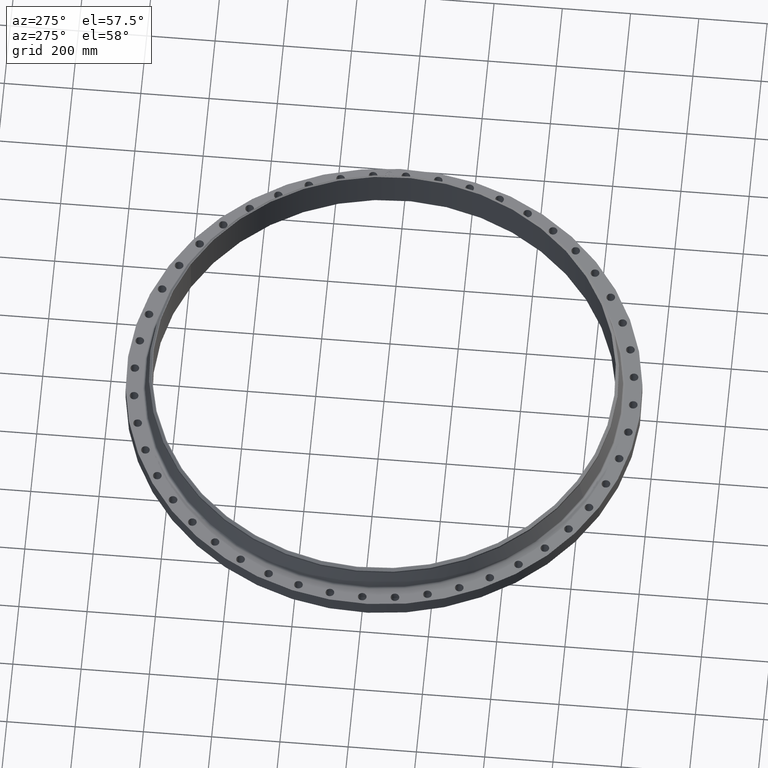
[diagram: clean part render]
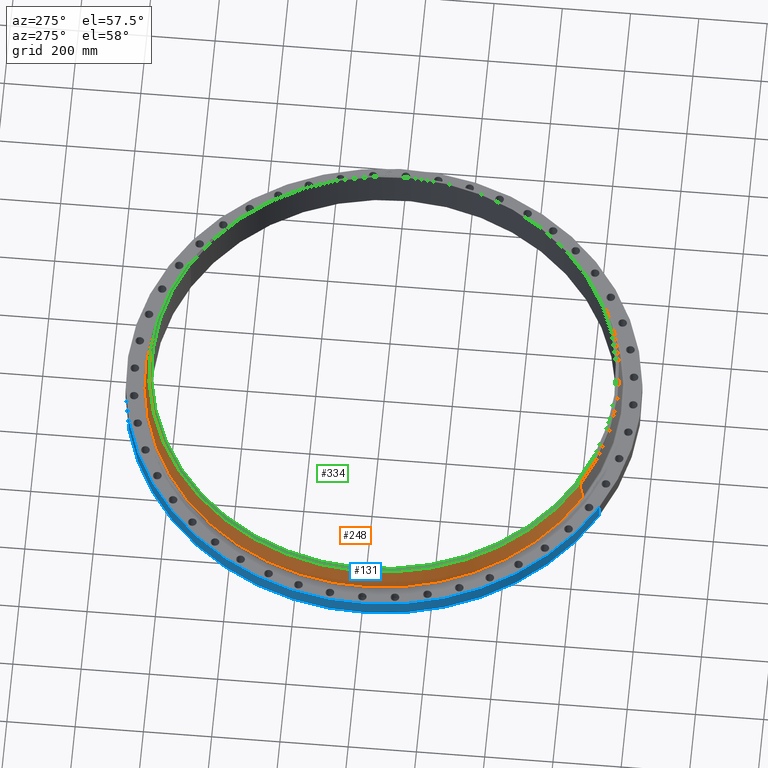
[diagram: same view with three faces highlighted in distinct colors, each labeled with its STEP entity id]
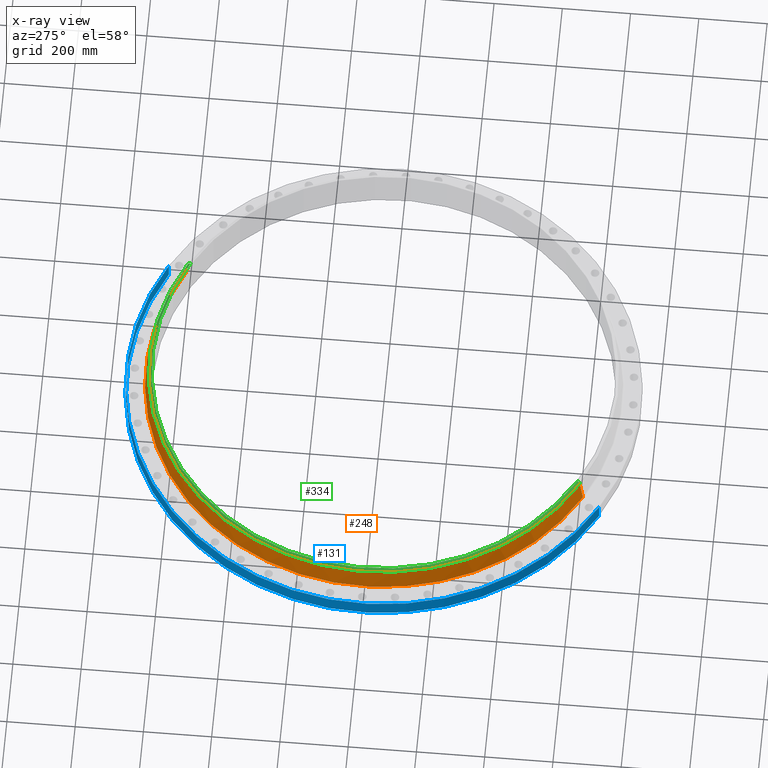
[diagram: x-ray of the same camera — body ghosted, the three highlighted faces saturated]
A machine part, auxiliary view with three faces highlighted in distinct colors.
The next image is the same camera in x-ray (body ghosted, the three faces saturated) — at least one of them is partly hidden behind the body in this view.
Their STEP definitions:

[orange] entity #248 — the highlighted conical surface has half-angle 10.548 deg.
#196=AXIS2_PLACEMENT_3D('Circle Axis2P3D',#194,#195,$) ;
#209=AXIS2_PLACEMENT_3D('Cone Axis2P3D',#206,#207,#208) ;
#239=AXIS2_PLACEMENT_3D('Circle Axis2P3D',#237,#238,$) ;
#167=CARTESIAN_POINT('Vertex',(13.1659693053,24.1001451578,2.08423344552)) ;
#174=CARTESIAN_POINT('Vertex',(-13.1659693053,-24.1001451578,2.08423344552)) ;
#194=CARTESIAN_POINT('Axis2P3D Location',(0.,0.,2.08423344552)) ;
#206=CARTESIAN_POINT('Axis2P3D Location',(0.,0.,4.40398984383)) ;
#211=CARTESIAN_POINT('Line Origine',(13.0624208069,23.9106009029,3.24411164468)) ;
#215=CARTESIAN_POINT('Vertex',(12.9588723085,23.721056648,4.40398984383)) ;
#222=CARTESIAN_POINT('Vertex',(-12.9588723085,-23.721056648,4.40398984383)) ;
#225=CARTESIAN_POINT('Line Origine',(-13.0624208069,-23.9106009029,3.24411164468)) ;
#237=CARTESIAN_POINT('Axis2P3D Location',(0.,0.,4.40398984383)) ;
#195=DIRECTION('Axis2P3D Direction',(0.,0.,-0.0393700787402)) ;
#207=DIRECTION('Axis2P3D Direction',(0.,0.,-0.0393700787402)) ;
#208=DIRECTION('Axis2P3D XDirection',(-0.0188750212049,-0.0345504945626,0.)) ;
#212=DIRECTION('Vector Direction',(0.00345537874576,0.00632502836797,-0.0387047474333)) ;
#226=DIRECTION('Vector Direction',(-0.00345537874576,-0.00632502836797,-0.0387047474333)) ;
#238=DIRECTION('Axis2P3D Direction',(0.,0.,-0.0393700787402)) ;
#213=VECTOR('Line Direction',#212,0.0393700787402) ;
#227=VECTOR('Line Direction',#226,0.0393700787402) ;
#243=ORIENTED_EDGE('',*,*,#198,.F.) ;
#244=ORIENTED_EDGE('',*,*,#229,.T.) ;
#245=ORIENTED_EDGE('',*,*,#241,.T.) ;
#246=ORIENTED_EDGE('',*,*,#217,.F.) ;
#248=ADVANCED_FACE('PartBody',(#247),#210,.T.) ;
#197=CIRCLE('generated circle',#196,27.4619690549) ;
#240=CIRCLE('generated circle',#239,27.0300000001) ;
#210=CONICAL_SURFACE('Cone',#209,27.0300000001,0.184104477087) ;
#198=EDGE_CURVE('',#175,#168,#197,.T.) ;
#217=EDGE_CURVE('',#168,#216,#214,.F.) ;
#229=EDGE_CURVE('',#175,#223,#228,.F.) ;
#241=EDGE_CURVE('',#223,#216,#240,.T.) ;
#242=EDGE_LOOP('',(#243,#244,#245,#246)) ;
#247=FACE_OUTER_BOUND('',#242,.T.) ;
#214=LINE('Line',#211,#213) ;
#228=LINE('Line',#225,#227) ;
#168=VERTEX_POINT('',#167) ;
#175=VERTEX_POINT('',#174) ;
#216=VERTEX_POINT('',#215) ;
#223=VERTEX_POINT('',#222) ;

[blue] entity #131 — the highlighted cylindrical surface (partial cylindrical patch) has radius 754.126 mm, axis along (0, 0, -1).
#95=AXIS2_PLACEMENT_3D('Cylinder Axis2P3D',#92,#93,#94) ;
#99=AXIS2_PLACEMENT_3D('Circle Axis2P3D',#97,#98,$) ;
#115=AXIS2_PLACEMENT_3D('Circle Axis2P3D',#113,#114,$) ;
#92=CARTESIAN_POINT('Axis2P3D Location',(0.,0.,2.45850000001)) ;
#97=CARTESIAN_POINT('Axis2P3D Location',(0.,0.,3.63663604917E-015)) ;
#101=CARTESIAN_POINT('Vertex',(-14.2341442412,-26.0554262626,3.35689481461E-015)) ;
#103=CARTESIAN_POINT('Vertex',(14.2341442412,26.0554262626,3.35689481461E-015)) ;
#106=CARTESIAN_POINT('Line Origine',(-14.2341442412,-26.0554262626,0.940000000004)) ;
#110=CARTESIAN_POINT('Vertex',(-14.2341442412,-26.0554262626,1.88000000001)) ;
#113=CARTESIAN_POINT('Axis2P3D Location',(0.,0.,1.88000000001)) ;
#117=CARTESIAN_POINT('Vertex',(14.2341442412,26.0554262626,1.88000000001)) ;
#120=CARTESIAN_POINT('Line Origine',(14.2341442412,26.0554262626,0.940000000004)) ;
#93=DIRECTION('Axis2P3D Direction',(0.,0.,-0.0393700787402)) ;
#94=DIRECTION('Axis2P3D XDirection',(0.0188750212049,0.0345504945626,0.)) ;
#98=DIRECTION('Axis2P3D Direction',(0.,0.,-0.0393700787402)) ;
#107=DIRECTION('Vector Direction',(0.,0.,-0.0393700787402)) ;
#114=DIRECTION('Axis2P3D Direction',(0.,0.,-0.0393700787402)) ;
#121=DIRECTION('Vector Direction',(0.,0.,-0.0393700787402)) ;
#108=VECTOR('Line Direction',#107,0.0393700787402) ;
#122=VECTOR('Line Direction',#121,0.0393700787402) ;
#126=ORIENTED_EDGE('',*,*,#105,.F.) ;
#127=ORIENTED_EDGE('',*,*,#112,.T.) ;
#128=ORIENTED_EDGE('',*,*,#119,.T.) ;
#129=ORIENTED_EDGE('',*,*,#124,.F.) ;
#131=ADVANCED_FACE('PartBody',(#130),#96,.T.) ;
#100=CIRCLE('generated circle',#99,29.6900000001) ;
#116=CIRCLE('generated circle',#115,29.6900000001) ;
#96=CYLINDRICAL_SURFACE('generated cylinder',#95,29.6900000001) ;
#105=EDGE_CURVE('',#102,#104,#100,.T.) ;
#112=EDGE_CURVE('',#102,#111,#109,.F.) ;
#119=EDGE_CURVE('',#111,#118,#116,.T.) ;
#124=EDGE_CURVE('',#104,#118,#123,.F.) ;
#125=EDGE_LOOP('',(#126,#127,#128,#129)) ;
#130=FACE_OUTER_BOUND('',#125,.T.) ;
#109=LINE('Line',#106,#108) ;
#123=LINE('Line',#120,#122) ;
#102=VERTEX_POINT('',#101) ;
#104=VERTEX_POINT('',#103) ;
#111=VERTEX_POINT('',#110) ;
#118=VERTEX_POINT('',#117) ;

[green] entity #334 — the highlighted conical surface has half-angle 52.5 deg.
#282=AXIS2_PLACEMENT_3D('Circle Axis2P3D',#280,#281,$) ;
#295=AXIS2_PLACEMENT_3D('Cone Axis2P3D',#292,#293,#294) ;
#325=AXIS2_PLACEMENT_3D('Circle Axis2P3D',#323,#324,$) ;
#258=CARTESIAN_POINT('Vertex',(-12.9588723085,-23.721056648,4.64021031628)) ;
#265=CARTESIAN_POINT('Vertex',(12.9588723085,23.721056648,4.64021031628)) ;
#280=CARTESIAN_POINT('Axis2P3D Location',(0.,0.,4.64021031628)) ;
#292=CARTESIAN_POINT('Axis2P3D Location',(0.,0.,4.88000000002)) ;
#297=CARTESIAN_POINT('Line Origine',(12.8839620681,23.5839343727,4.76010515815)) ;
#301=CARTESIAN_POINT('Vertex',(12.8090518277,23.4468120974,4.88000000002)) ;
#308=CARTESIAN_POINT('Vertex',(-12.8090518277,-23.4468120974,4.88000000002)) ;
#311=CARTESIAN_POINT('Line Origine',(-12.8839620681,-23.5839343727,4.76010515815)) ;
#323=CARTESIAN_POINT('Axis2P3D Location',(0.,0.,4.88000000002)) ;
#281=DIRECTION('Axis2P3D Direction',(0.,0.,-0.0393700787402)) ;
#293=DIRECTION('Axis2P3D Direction',(-0.,-0.,-0.0393700787402)) ;
#294=DIRECTION('Axis2P3D XDirection',(-0.0188750212049,-0.0345504945626,0.)) ;
#298=DIRECTION('Vector Direction',(0.014974561121,0.02741075027,-0.023966985394)) ;
#312=DIRECTION('Vector Direction',(-0.014974561121,-0.02741075027,-0.023966985394)) ;
#324=DIRECTION('Axis2P3D Direction',(0.,-0.,-0.0393700787402)) ;
#299=VECTOR('Line Direction',#298,0.0393700787402) ;
#313=VECTOR('Line Direction',#312,0.0393700787402) ;
#329=ORIENTED_EDGE('',*,*,#315,.F.) ;
#330=ORIENTED_EDGE('',*,*,#327,.T.) ;
#331=ORIENTED_EDGE('',*,*,#303,.T.) ;
#332=ORIENTED_EDGE('',*,*,#284,.F.) ;
#334=ADVANCED_FACE('PartBody',(#333),#296,.T.) ;
#283=CIRCLE('generated circle',#282,27.0300000001) ;
#326=CIRCLE('generated circle',#325,26.7175000001) ;
#296=CONICAL_SURFACE('Cone',#295,26.7175000001,0.916297857297) ;
#284=EDGE_CURVE('',#259,#266,#283,.T.) ;
#303=EDGE_CURVE('',#302,#266,#300,.T.) ;
#315=EDGE_CURVE('',#309,#259,#314,.T.) ;
#327=EDGE_CURVE('',#309,#302,#326,.T.) ;
#328=EDGE_LOOP('',(#329,#330,#331,#332)) ;
#333=FACE_OUTER_BOUND('',#328,.T.) ;
#300=LINE('Line',#297,#299) ;
#314=LINE('Line',#311,#313) ;
#259=VERTEX_POINT('',#258) ;
#266=VERTEX_POINT('',#265) ;
#302=VERTEX_POINT('',#301) ;
#309=VERTEX_POINT('',#308) ;